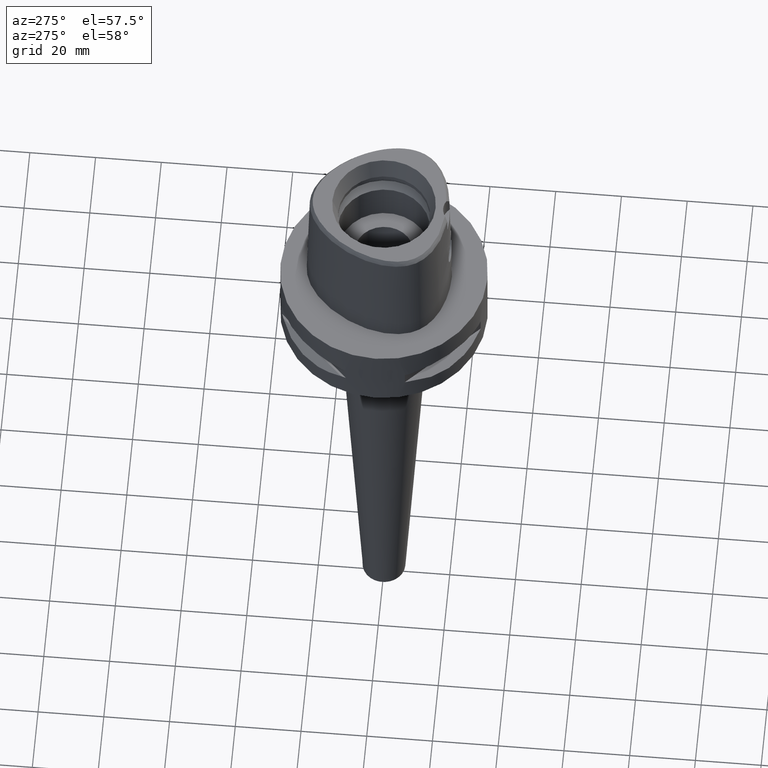
[diagram: clean part render]
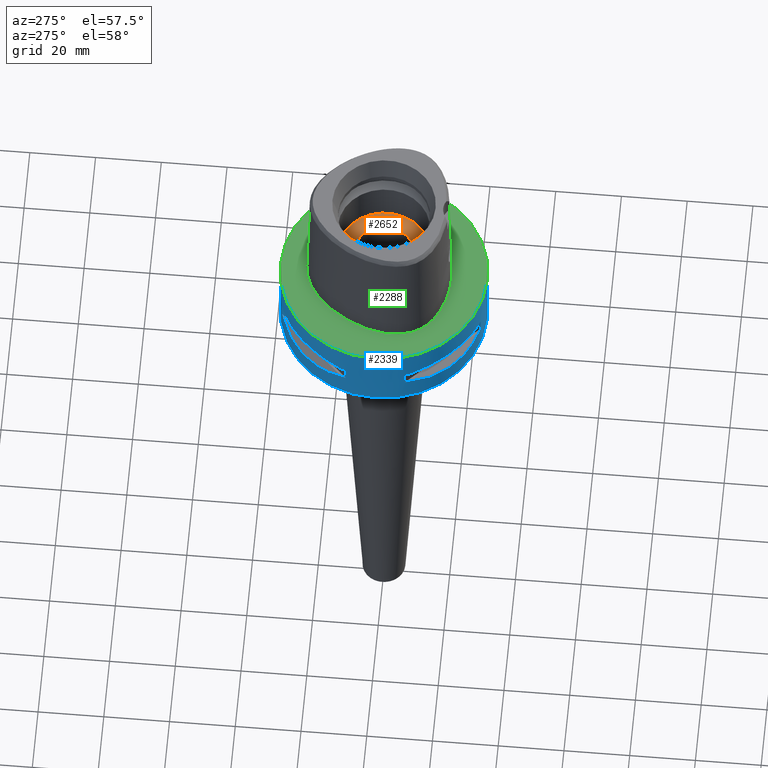
[diagram: same view with three faces highlighted in distinct colors, each labeled with its STEP entity id]
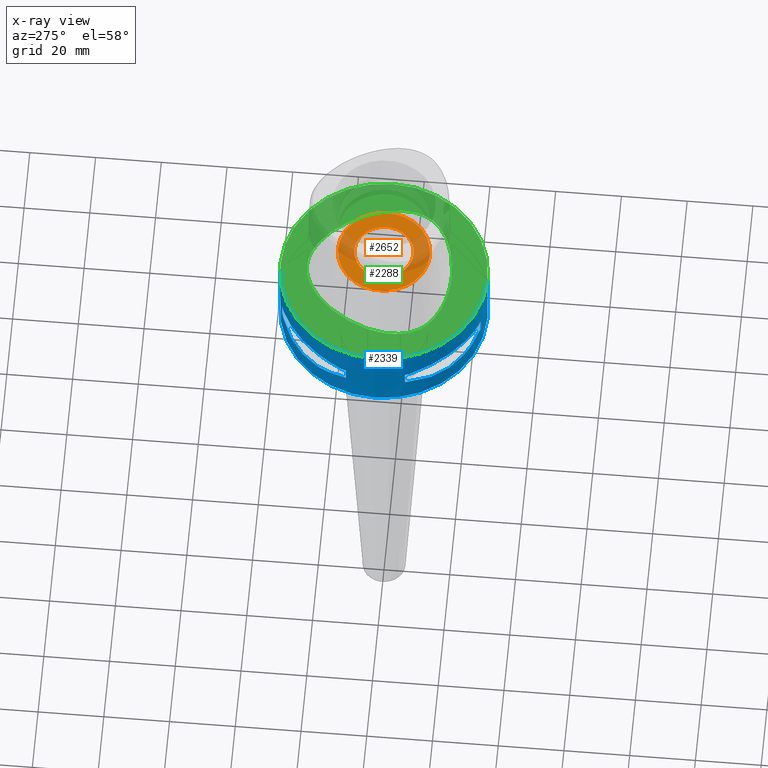
[diagram: x-ray of the same camera — body ghosted, the three highlighted faces saturated]
A machine part, auxiliary view with three faces highlighted in distinct colors.
The next image is the same camera in x-ray (body ghosted, the three faces saturated) — at least one of them is partly hidden behind the body in this view.
Their STEP definitions:

[orange] entity #2652 — the highlighted planar face has unit normal (0, 0, -1).
#745=CARTESIAN_POINT('',(0.E0,0.E0,1.1E1));
#746=DIRECTION('',(0.E0,0.E0,-1.E0));
#747=DIRECTION('',(0.E0,1.E0,0.E0));
#748=AXIS2_PLACEMENT_3D('',#745,#746,#747);
#753=CARTESIAN_POINT('',(0.E0,0.E0,1.1E1));
#754=DIRECTION('',(0.E0,0.E0,-1.E0));
#755=DIRECTION('',(0.E0,-1.E0,0.E0));
#756=AXIS2_PLACEMENT_3D('',#753,#754,#755);
#761=CARTESIAN_POINT('',(0.E0,0.E0,1.1E1));
#762=DIRECTION('',(0.E0,0.E0,1.E0));
#763=DIRECTION('',(0.E0,1.E0,0.E0));
#764=AXIS2_PLACEMENT_3D('',#761,#762,#763);
#769=CARTESIAN_POINT('',(0.E0,0.E0,1.1E1));
#770=DIRECTION('',(0.E0,0.E0,1.E0));
#771=DIRECTION('',(0.E0,-1.E0,0.E0));
#772=AXIS2_PLACEMENT_3D('',#769,#770,#771);
#1558=CARTESIAN_POINT('',(0.E0,9.E0,1.1E1));
#1559=VERTEX_POINT('',#1558);
#1560=CARTESIAN_POINT('',(0.E0,-9.E0,1.1E1));
#1561=VERTEX_POINT('',#1560);
#1562=CARTESIAN_POINT('',(0.E0,1.4E1,1.1E1));
#1563=CARTESIAN_POINT('',(0.E0,-1.4E1,1.1E1));
#1564=VERTEX_POINT('',#1562);
#1565=VERTEX_POINT('',#1563);
#2637=CARTESIAN_POINT('',(0.E0,0.E0,1.1E1));
#2638=DIRECTION('',(0.E0,0.E0,-1.E0));
#2639=DIRECTION('',(0.E0,-1.E0,0.E0));
#2640=AXIS2_PLACEMENT_3D('',#2637,#2638,#2639);
#2641=PLANE('',#2640);
#2643=ORIENTED_EDGE('',*,*,#2642,.T.);
#2645=ORIENTED_EDGE('',*,*,#2644,.T.);
#2646=EDGE_LOOP('',(#2643,#2645));
#2647=FACE_OUTER_BOUND('',#2646,.F.);
#2648=ORIENTED_EDGE('',*,*,#2619,.T.);
#2649=ORIENTED_EDGE('',*,*,#2632,.T.);
#2650=EDGE_LOOP('',(#2648,#2649));
#2651=FACE_BOUND('',#2650,.F.);
#749=CIRCLE('',#748,1.4E1);
#757=CIRCLE('',#756,1.4E1);
#765=CIRCLE('',#764,9.E0);
#773=CIRCLE('',#772,9.E0);
#2619=EDGE_CURVE('',#1559,#1561,#765,.T.);
#2632=EDGE_CURVE('',#1561,#1559,#773,.T.);
#2642=EDGE_CURVE('',#1564,#1565,#749,.T.);
#2644=EDGE_CURVE('',#1565,#1564,#757,.T.);
#2652=ADVANCED_FACE('',(#2647,#2651),#2641,.F.);

[blue] entity #2339 — the highlighted cylindrical surface (partial cylindrical patch) has radius 31.5 mm, axis along (0, 0, -1).
#275=CARTESIAN_POINT('',(0.E0,1.325680160077E-14,0.E0));
#276=DIRECTION('',(0.E0,0.E0,-1.E0));
#277=DIRECTION('',(0.E0,-1.E0,0.E0));
#278=AXIS2_PLACEMENT_3D('',#275,#276,#277);
#371=DIRECTION('',(0.E0,0.E0,-1.E0));
#372=VECTOR('',#371,2.2E1);
#373=CARTESIAN_POINT('',(0.E0,-3.15E1,0.E0));
#374=LINE('',#373,#372);
#378=DIRECTION('',(0.E0,0.E0,-1.E0));
#379=VECTOR('',#378,4.1E0);
#380=CARTESIAN_POINT('',(-8.981198972017E0,3.019251670572E1,-9.95E0));
#381=LINE('',#380,#379);
#385=CARTESIAN_POINT('',(-1.044775724750E1,2.971690375018E1,-1.405E1));
#386=CARTESIAN_POINT('',(-1.282388988809E1,2.888151197365E1,-1.467900482380E1));
#387=CARTESIAN_POINT('',(-1.711282138769E1,2.674739463903E1,-1.555870402293E1));
#388=CARTESIAN_POINT('',(-2.244574140438E1,2.244574140438E1,-1.597971692371E1));
#389=CARTESIAN_POINT('',(-2.674739463903E1,1.711282138769E1,-1.555870402293E1));
#390=CARTESIAN_POINT('',(-2.888151197365E1,1.282388988809E1,-1.467900482380E1));
#391=CARTESIAN_POINT('',(-2.971690375018E1,1.044775724750E1,-1.405E1));
#396=DIRECTION('',(0.E0,0.E0,1.E0));
#397=VECTOR('',#396,4.1E0);
#398=CARTESIAN_POINT('',(-3.019251670572E1,8.981198972017E0,-1.405E1));
#399=LINE('',#398,#397);
#403=DIRECTION('',(0.E0,0.E0,-1.E0));
#404=VECTOR('',#403,4.1E0);
#405=CARTESIAN_POINT('',(-3.019251670572E1,-8.981198972017E0,-9.95E0));
#406=LINE('',#405,#404);
#410=CARTESIAN_POINT('',(-2.971690375018E1,-1.044775724750E1,-1.405E1));
#411=CARTESIAN_POINT('',(-2.888151197365E1,-1.282388988809E1,
-1.467900482380E1));
#412=CARTESIAN_POINT('',(-2.674739463903E1,-1.711282138769E1,
-1.555870402292E1));
#413=CARTESIAN_POINT('',(-2.244574140438E1,-2.244574140438E1,
-1.597971692371E1));
#414=CARTESIAN_POINT('',(-1.711282138769E1,-2.674739463903E1,
-1.555870402292E1));
#415=CARTESIAN_POINT('',(-1.282388988809E1,-2.888151197365E1,
-1.467900482380E1));
#416=CARTESIAN_POINT('',(-1.044775724750E1,-2.971690375018E1,-1.405E1));
#421=DIRECTION('',(0.E0,0.E0,1.E0));
#422=VECTOR('',#421,4.1E0);
#423=CARTESIAN_POINT('',(-8.981198972017E0,-3.019251670572E1,-1.405E1));
#424=LINE('',#423,#422);
#428=DIRECTION('',(0.E0,0.E0,-1.E0));
#429=VECTOR('',#428,2.2E1);
#430=CARTESIAN_POINT('',(0.E0,3.15E1,0.E0));
#431=LINE('',#430,#429);
#493=CARTESIAN_POINT('',(0.E0,1.325680160077E-14,-2.2E1));
#494=DIRECTION('',(0.E0,0.E0,1.E0));
#495=DIRECTION('',(0.E0,1.E0,0.E0));
#496=AXIS2_PLACEMENT_3D('',#493,#494,#495);
#1290=CARTESIAN_POINT('',(-1.044775724750E1,2.971690375018E1,
-9.950000000001E0));
#1291=CARTESIAN_POINT('',(-1.282388988809E1,2.888151197365E1,
-9.320995176200E0));
#1292=CARTESIAN_POINT('',(-1.711282138769E1,2.674739463903E1,
-8.441295977077E0));
#1293=CARTESIAN_POINT('',(-2.244574140438E1,2.244574140438E1,
-8.020283076297E0));
#1294=CARTESIAN_POINT('',(-2.674739463903E1,1.711282138769E1,
-8.441295977077E0));
#1295=CARTESIAN_POINT('',(-2.888151197365E1,1.282388988809E1,
-9.320995176200E0));
#1296=CARTESIAN_POINT('',(-2.971690375018E1,1.044775724750E1,
-9.950000000001E0));
#1301=CARTESIAN_POINT('',(0.E0,1.325680160077E-14,-9.95E0));
#1302=DIRECTION('',(0.E0,0.E0,1.E0));
#1303=DIRECTION('',(-9.433937698469E-1,3.316748332541E-1,0.E0));
#1304=AXIS2_PLACEMENT_3D('',#1301,#1302,#1303);
#1309=CARTESIAN_POINT('',(0.E0,1.325680160077E-14,-9.95E0));
#1310=DIRECTION('',(0.E0,0.E0,1.E0));
#1311=DIRECTION('',(-2.851174276832E-1,9.584925938323E-1,0.E0));
#1312=AXIS2_PLACEMENT_3D('',#1309,#1310,#1311);
#1331=CARTESIAN_POINT('',(0.E0,1.325680160077E-14,-1.405E1));
#1332=DIRECTION('',(0.E0,0.E0,-1.E0));
#1333=DIRECTION('',(-9.584925938323E-1,2.851174276832E-1,0.E0));
#1334=AXIS2_PLACEMENT_3D('',#1331,#1332,#1333);
#1339=CARTESIAN_POINT('',(0.E0,1.325680160077E-14,-1.405E1));
#1340=DIRECTION('',(0.E0,0.E0,-1.E0));
#1341=DIRECTION('',(-3.316748332541E-1,9.433937698469E-1,0.E0));
#1342=AXIS2_PLACEMENT_3D('',#1339,#1340,#1341);
#1361=CARTESIAN_POINT('',(-2.971690375018E1,-1.044775724750E1,
-9.950000000001E0));
#1362=CARTESIAN_POINT('',(-2.888151197365E1,-1.282388988809E1,
-9.320995176200E0));
#1363=CARTESIAN_POINT('',(-2.674739463903E1,-1.711282138769E1,
-8.441295977077E0));
#1364=CARTESIAN_POINT('',(-2.244574140438E1,-2.244574140438E1,
-8.020283076297E0));
#1365=CARTESIAN_POINT('',(-1.711282138769E1,-2.674739463903E1,
-8.441295977077E0));
#1366=CARTESIAN_POINT('',(-1.282388988809E1,-2.888151197365E1,
-9.320995176200E0));
#1367=CARTESIAN_POINT('',(-1.044775724750E1,-2.971690375018E1,
-9.950000000001E0));
#1372=CARTESIAN_POINT('',(0.E0,1.325680160077E-14,-9.95E0));
#1373=DIRECTION('',(0.E0,0.E0,1.E0));
#1374=DIRECTION('',(-3.316748332541E-1,-9.433937698469E-1,0.E0));
#1375=AXIS2_PLACEMENT_3D('',#1372,#1373,#1374);
#1380=CARTESIAN_POINT('',(0.E0,1.325680160077E-14,-9.95E0));
#1381=DIRECTION('',(0.E0,0.E0,1.E0));
#1382=DIRECTION('',(-9.584925938323E-1,-2.851174276832E-1,0.E0));
#1383=AXIS2_PLACEMENT_3D('',#1380,#1381,#1382);
#1402=CARTESIAN_POINT('',(0.E0,1.325680160077E-14,-1.405E1));
#1403=DIRECTION('',(0.E0,0.E0,-1.E0));
#1404=DIRECTION('',(-2.851174276832E-1,-9.584925938323E-1,0.E0));
#1405=AXIS2_PLACEMENT_3D('',#1402,#1403,#1404);
#1410=CARTESIAN_POINT('',(0.E0,1.325680160077E-14,-1.405E1));
#1411=DIRECTION('',(0.E0,0.E0,-1.E0));
#1412=DIRECTION('',(-9.433937698469E-1,-3.316748332541E-1,0.E0));
#1413=AXIS2_PLACEMENT_3D('',#1410,#1411,#1412);
#1458=CARTESIAN_POINT('',(0.E0,-3.15E1,0.E0));
#1459=CARTESIAN_POINT('',(0.E0,3.15E1,0.E0));
#1460=VERTEX_POINT('',#1458);
#1461=VERTEX_POINT('',#1459);
#1462=CARTESIAN_POINT('',(0.E0,3.15E1,-2.2E1));
#1463=VERTEX_POINT('',#1462);
#1464=CARTESIAN_POINT('',(0.E0,-3.15E1,-2.2E1));
#1465=VERTEX_POINT('',#1464);
#1466=VERTEX_POINT('',#1290);
#1467=VERTEX_POINT('',#1296);
#1468=CARTESIAN_POINT('',(-8.981198972020E0,3.019251670572E1,-9.95E0));
#1469=VERTEX_POINT('',#1468);
#1470=CARTESIAN_POINT('',(-8.981198972017E0,3.019251670572E1,-1.405E1));
#1471=VERTEX_POINT('',#1470);
#1472=CARTESIAN_POINT('',(-1.044775724750E1,2.971690375018E1,-1.405E1));
#1473=VERTEX_POINT('',#1472);
#1474=VERTEX_POINT('',#391);
#1475=CARTESIAN_POINT('',(-3.019251670572E1,8.981198972020E0,-1.405E1));
#1476=VERTEX_POINT('',#1475);
#1477=CARTESIAN_POINT('',(-3.019251670572E1,8.981198972017E0,-9.95E0));
#1478=VERTEX_POINT('',#1477);
#1479=VERTEX_POINT('',#1361);
#1480=VERTEX_POINT('',#1367);
#1481=CARTESIAN_POINT('',(-3.019251670572E1,-8.981198972020E0,-9.95E0));
#1482=VERTEX_POINT('',#1481);
#1483=CARTESIAN_POINT('',(-3.019251670572E1,-8.981198972017E0,-1.405E1));
#1484=VERTEX_POINT('',#1483);
#1485=CARTESIAN_POINT('',(-2.971690375018E1,-1.044775724750E1,-1.405E1));
#1486=VERTEX_POINT('',#1485);
#1487=VERTEX_POINT('',#416);
#1488=CARTESIAN_POINT('',(-8.981198972020E0,-3.019251670572E1,-1.405E1));
#1489=VERTEX_POINT('',#1488);
#1490=CARTESIAN_POINT('',(-8.981198972017E0,-3.019251670572E1,-9.95E0));
#1491=VERTEX_POINT('',#1490);
#2289=CARTESIAN_POINT('',(0.E0,1.325680160077E-14,8.25E0));
#2290=DIRECTION('',(0.E0,0.E0,-1.E0));
#2291=DIRECTION('',(0.E0,-1.E0,0.E0));
#2292=AXIS2_PLACEMENT_3D('',#2289,#2290,#2291);
#2293=CYLINDRICAL_SURFACE('',#2292,3.15E1);
#2295=ORIENTED_EDGE('',*,*,#2294,.F.);
#2296=ORIENTED_EDGE('',*,*,#2277,.F.);
#2298=ORIENTED_EDGE('',*,*,#2297,.T.);
#2300=ORIENTED_EDGE('',*,*,#2299,.F.);
#2301=EDGE_LOOP('',(#2295,#2296,#2298,#2300));
#2302=FACE_OUTER_BOUND('',#2301,.F.);
#2304=ORIENTED_EDGE('',*,*,#2303,.F.);
#2306=ORIENTED_EDGE('',*,*,#2305,.F.);
#2308=ORIENTED_EDGE('',*,*,#2307,.T.);
#2310=ORIENTED_EDGE('',*,*,#2309,.F.);
#2312=ORIENTED_EDGE('',*,*,#2311,.T.);
#2314=ORIENTED_EDGE('',*,*,#2313,.F.);
#2316=ORIENTED_EDGE('',*,*,#2315,.T.);
#2318=ORIENTED_EDGE('',*,*,#2317,.F.);
#2319=EDGE_LOOP('',(#2304,#2306,#2308,#2310,#2312,#2314,#2316,#2318));
#2320=FACE_BOUND('',#2319,.F.);
#2322=ORIENTED_EDGE('',*,*,#2321,.F.);
#2324=ORIENTED_EDGE('',*,*,#2323,.F.);
#2326=ORIENTED_EDGE('',*,*,#2325,.T.);
#2328=ORIENTED_EDGE('',*,*,#2327,.F.);
#2330=ORIENTED_EDGE('',*,*,#2329,.T.);
#2332=ORIENTED_EDGE('',*,*,#2331,.F.);
#2334=ORIENTED_EDGE('',*,*,#2333,.T.);
#2336=ORIENTED_EDGE('',*,*,#2335,.F.);
#2337=EDGE_LOOP('',(#2322,#2324,#2326,#2328,#2330,#2332,#2334,#2336));
#2338=FACE_BOUND('',#2337,.F.);
#279=CIRCLE('',#278,3.15E1);
#392=B_SPLINE_CURVE_WITH_KNOTS('',3,(#385,#386,#387,#388,#389,#390,#391),
.UNSPECIFIED.,.F.,.F.,(4,1,1,1,4),(0.E0,2.5E-1,5.E-1,7.5E-1,1.E0),
.UNSPECIFIED.);
#417=B_SPLINE_CURVE_WITH_KNOTS('',3,(#410,#411,#412,#413,#414,#415,#416),
.UNSPECIFIED.,.F.,.F.,(4,1,1,1,4),(0.E0,2.5E-1,5.E-1,7.5E-1,1.E0),
.UNSPECIFIED.);
#497=CIRCLE('',#496,3.15E1);
#1297=B_SPLINE_CURVE_WITH_KNOTS('',3,(#1290,#1291,#1292,#1293,#1294,#1295,
#1296),.UNSPECIFIED.,.F.,.F.,(4,1,1,1,4),(0.E0,2.5E-1,5.E-1,7.5E-1,1.E0),
.UNSPECIFIED.);
#1305=CIRCLE('',#1304,3.15E1);
#1313=CIRCLE('',#1312,3.15E1);
#1335=CIRCLE('',#1334,3.15E1);
#1343=CIRCLE('',#1342,3.15E1);
#1368=B_SPLINE_CURVE_WITH_KNOTS('',3,(#1361,#1362,#1363,#1364,#1365,#1366,
#1367),.UNSPECIFIED.,.F.,.F.,(4,1,1,1,4),(0.E0,2.5E-1,5.E-1,7.5E-1,1.E0),
.UNSPECIFIED.);
#1376=CIRCLE('',#1375,3.15E1);
#1384=CIRCLE('',#1383,3.15E1);
#1406=CIRCLE('',#1405,3.15E1);
#1414=CIRCLE('',#1413,3.15E1);
#2277=EDGE_CURVE('',#1460,#1461,#279,.T.);
#2294=EDGE_CURVE('',#1461,#1463,#431,.T.);
#2297=EDGE_CURVE('',#1460,#1465,#374,.T.);
#2299=EDGE_CURVE('',#1463,#1465,#497,.T.);
#2303=EDGE_CURVE('',#1466,#1467,#1297,.T.);
#2305=EDGE_CURVE('',#1469,#1466,#1313,.T.);
#2307=EDGE_CURVE('',#1469,#1471,#381,.T.);
#2309=EDGE_CURVE('',#1473,#1471,#1343,.T.);
#2311=EDGE_CURVE('',#1473,#1474,#392,.T.);
#2313=EDGE_CURVE('',#1476,#1474,#1335,.T.);
#2315=EDGE_CURVE('',#1476,#1478,#399,.T.);
#2317=EDGE_CURVE('',#1467,#1478,#1305,.T.);
#2321=EDGE_CURVE('',#1479,#1480,#1368,.T.);
#2323=EDGE_CURVE('',#1482,#1479,#1384,.T.);
#2325=EDGE_CURVE('',#1482,#1484,#406,.T.);
#2327=EDGE_CURVE('',#1486,#1484,#1414,.T.);
#2329=EDGE_CURVE('',#1486,#1487,#417,.T.);
#2331=EDGE_CURVE('',#1489,#1487,#1406,.T.);
#2333=EDGE_CURVE('',#1489,#1491,#424,.T.);
#2335=EDGE_CURVE('',#1480,#1491,#1376,.T.);
#2339=ADVANCED_FACE('',(#2302,#2320,#2338),#2293,.T.);

[green] entity #2288 — the highlighted planar face has unit normal (0, 0, -1).
#275=CARTESIAN_POINT('',(0.E0,1.325680160077E-14,0.E0));
#276=DIRECTION('',(0.E0,0.E0,-1.E0));
#277=DIRECTION('',(0.E0,-1.E0,0.E0));
#278=AXIS2_PLACEMENT_3D('',#275,#276,#277);
#283=CARTESIAN_POINT('',(0.E0,1.325680160077E-14,0.E0));
#284=DIRECTION('',(0.E0,0.E0,-1.E0));
#285=DIRECTION('',(0.E0,1.E0,0.E0));
#286=AXIS2_PLACEMENT_3D('',#283,#284,#285);
#291=CARTESIAN_POINT('',(-5.544119263659E-12,-2.0675E1,7.264559324464E-14));
#292=CARTESIAN_POINT('',(9.993560509798E-1,-2.0675E1,7.264559324464E-14));
#293=CARTESIAN_POINT('',(2.955454059953E0,-2.059182991098E1,
-3.371493715748E-14));
#294=CARTESIAN_POINT('',(5.793056832365E0,-2.023445547095E1,0.E0));
#295=CARTESIAN_POINT('',(8.440299845029E0,-1.966898990197E1,0.E0));
#296=CARTESIAN_POINT('',(1.082569887884E1,-1.893751788510E1,0.E0));
#297=CARTESIAN_POINT('',(1.292144293780E1,-1.808304144246E1,0.E0));
#298=CARTESIAN_POINT('',(1.473190987268E1,-1.714161088191E1,0.E0));
#299=CARTESIAN_POINT('',(1.628058086811E1,-1.613700341594E1,0.E0));
#300=CARTESIAN_POINT('',(1.758462319708E1,-1.509429163050E1,0.E0));
#301=CARTESIAN_POINT('',(1.868311493360E1,-1.401452497844E1,0.E0));
#302=CARTESIAN_POINT('',(1.959652438140E1,-1.290475345799E1,0.E0));
#303=CARTESIAN_POINT('',(2.036064678625E1,-1.173722907498E1,0.E0));
#304=CARTESIAN_POINT('',(2.098286737742E1,-1.049796407517E1,0.E0));
#305=CARTESIAN_POINT('',(2.148460262653E1,-9.152658909070E0,0.E0));
#306=CARTESIAN_POINT('',(2.186688955230E1,-7.668741930685E0,0.E0));
#307=CARTESIAN_POINT('',(2.211748022392E1,-6.011344606950E0,0.E0));
#308=CARTESIAN_POINT('',(2.221114513228E1,-4.165101131633E0,0.E0));
#309=CARTESIAN_POINT('',(2.211859909826E1,-2.119791264277E0,0.E0));
#310=CARTESIAN_POINT('',(2.180697303124E1,1.274638893074E-1,0.E0));
#311=CARTESIAN_POINT('',(2.124390727169E1,2.561688994165E0,0.E0));
#312=CARTESIAN_POINT('',(2.040432990039E1,5.142967568815E0,0.E0));
#313=CARTESIAN_POINT('',(1.928615762684E1,7.790527726071E0,0.E0));
#314=CARTESIAN_POINT('',(1.790818983488E1,1.041471447125E1,0.E0));
#315=CARTESIAN_POINT('',(1.631740085403E1,1.291115934797E1,0.E0));
#316=CARTESIAN_POINT('',(1.457981575214E1,1.519116277501E1,0.E0));
#317=CARTESIAN_POINT('',(1.276360468057E1,1.719471030503E1,0.E0));
#318=CARTESIAN_POINT('',(1.094031032691E1,1.888405274651E1,0.E0));
#319=CARTESIAN_POINT('',(9.153147211204E0,2.026455207171E1,0.E0));
#320=CARTESIAN_POINT('',(7.435015692265E0,2.135402119261E1,0.E0));
#321=CARTESIAN_POINT('',(5.795953209951E0,2.218530691809E1,0.E0));
#322=CARTESIAN_POINT('',(4.238113018428E0,2.278980944085E1,0.E0));
#323=CARTESIAN_POINT('',(2.755912777145E0,2.319591735050E1,0.E0));
#324=CARTESIAN_POINT('',(1.346169757095E0,2.342625517229E1,
-3.235809557040E-14));
#325=CARTESIAN_POINT('',(4.420725725818E-1,2.347499999999E1,
6.972200594646E-14));
#326=CARTESIAN_POINT('',(3.799139197506E-11,2.347499999999E1,
6.972200594646E-14));
#331=CARTESIAN_POINT('',(3.799139197506E-11,2.347499999999E1,
6.972200594646E-14));
#332=CARTESIAN_POINT('',(-4.425820475878E-1,2.347499999999E1,
6.972200594646E-14));
#333=CARTESIAN_POINT('',(-1.347662200040E0,2.342614583775E1,
-3.235809557040E-14));
#334=CARTESIAN_POINT('',(-2.758853381342E0,2.319531897184E1,0.E0));
#335=CARTESIAN_POINT('',(-4.242230104549E0,2.278848861890E1,0.E0));
#336=CARTESIAN_POINT('',(-5.801612667635E0,2.218285001682E1,0.E0));
#337=CARTESIAN_POINT('',(-7.442978404358E0,2.134957065587E1,0.E0));
#338=CARTESIAN_POINT('',(-9.163227561140E0,2.025756793929E1,0.E0));
#339=CARTESIAN_POINT('',(-1.095272870368E1,1.887364628884E1,0.E0));
#340=CARTESIAN_POINT('',(-1.277801152707E1,1.718022281640E1,0.E0));
#341=CARTESIAN_POINT('',(-1.459495771783E1,1.517303412729E1,0.E0));
#342=CARTESIAN_POINT('',(-1.633282642389E1,1.288911490603E1,0.E0));
#343=CARTESIAN_POINT('',(-1.792246770589E1,1.039015374661E1,0.E0));
#344=CARTESIAN_POINT('',(-1.929884579616E1,7.763682889804E0,0.E0));
#345=CARTESIAN_POINT('',(-2.041405626851E1,5.116842502056E0,0.E0));
#346=CARTESIAN_POINT('',(-2.125087139496E1,2.536440296266E0,0.E0));
#347=CARTESIAN_POINT('',(-2.181091904993E1,1.058134259895E-1,0.E0));
#348=CARTESIAN_POINT('',(-2.212049288494E1,-2.140142262062E0,0.E0));
#349=CARTESIAN_POINT('',(-2.221099399982E1,-4.183391986546E0,0.E0));
#350=CARTESIAN_POINT('',(-2.211611235615E1,-6.025168758480E0,0.E0));
#351=CARTESIAN_POINT('',(-2.186347175870E1,-7.686763478002E0,0.E0));
#352=CARTESIAN_POINT('',(-2.147797938097E1,-9.173911519513E0,0.E0));
#353=CARTESIAN_POINT('',(-2.097460780692E1,-1.051678122246E1,0.E0));
#354=CARTESIAN_POINT('',(-2.035325712307E1,-1.174865156376E1,0.E0));
#355=CARTESIAN_POINT('',(-1.960223723573E1,-1.289594780434E1,0.E0));
#356=CARTESIAN_POINT('',(-1.869579824321E1,-1.400010665431E1,0.E0));
#357=CARTESIAN_POINT('',(-1.760876310015E1,-1.507291202278E1,0.E0));
#358=CARTESIAN_POINT('',(-1.629860914140E1,-1.612432705675E1,0.E0));
#359=CARTESIAN_POINT('',(-1.475326852250E1,-1.712914698935E1,0.E0));
#360=CARTESIAN_POINT('',(-1.294126791582E1,-1.807406224244E1,0.E0));
#361=CARTESIAN_POINT('',(-1.084450933749E1,-1.893089849681E1,0.E0));
#362=CARTESIAN_POINT('',(-8.457239462537E0,-1.966475618658E1,0.E0));
#363=CARTESIAN_POINT('',(-5.803786146490E0,-2.023290404964E1,0.E0));
#364=CARTESIAN_POINT('',(-2.957577428885E0,-2.059182769325E1,
-3.371493715748E-14));
#365=CARTESIAN_POINT('',(-9.997112379900E-1,-2.0675E1,7.264559324464E-14));
#366=CARTESIAN_POINT('',(-5.544119263659E-12,-2.0675E1,7.264559324464E-14));
#1452=VERTEX_POINT('',#331);
#1453=VERTEX_POINT('',#366);
#1458=CARTESIAN_POINT('',(0.E0,-3.15E1,0.E0));
#1459=CARTESIAN_POINT('',(0.E0,3.15E1,0.E0));
#1460=VERTEX_POINT('',#1458);
#1461=VERTEX_POINT('',#1459);
#2272=CARTESIAN_POINT('',(0.E0,1.224646799147E-14,0.E0));
#2273=DIRECTION('',(0.E0,0.E0,-1.E0));
#2274=DIRECTION('',(0.E0,-1.E0,0.E0));
#2275=AXIS2_PLACEMENT_3D('',#2272,#2273,#2274);
#2276=PLANE('',#2275);
#2278=ORIENTED_EDGE('',*,*,#2277,.T.);
#2280=ORIENTED_EDGE('',*,*,#2279,.T.);
#2281=EDGE_LOOP('',(#2278,#2280));
#2282=FACE_OUTER_BOUND('',#2281,.F.);
#2284=ORIENTED_EDGE('',*,*,#2283,.T.);
#2285=ORIENTED_EDGE('',*,*,#2255,.T.);
#2286=EDGE_LOOP('',(#2284,#2285));
#2287=FACE_BOUND('',#2286,.F.);
#279=CIRCLE('',#278,3.15E1);
#287=CIRCLE('',#286,3.15E1);
#327=B_SPLINE_CURVE_WITH_KNOTS('',3,(#291,#292,#293,#294,#295,#296,#297,#298,
#299,#300,#301,#302,#303,#304,#305,#306,#307,#308,#309,#310,#311,#312,#313,#314,
#315,#316,#317,#318,#319,#320,#321,#322,#323,#324,#325,#326),.UNSPECIFIED.,.F.,
.F.,(4,1,1,1,1,1,1,1,1,1,1,1,1,1,1,1,1,1,1,1,1,1,1,1,1,1,1,1,1,1,1,1,1,4),(0.E0,
3.030303030303E-2,6.060606060606E-2,9.090909090909E-2,1.212121212121E-1,
1.515151515152E-1,1.818181818182E-1,2.121212121212E-1,2.424242424242E-1,
2.727272727273E-1,3.030303030303E-1,3.333333333333E-1,3.636363636364E-1,
3.939393939394E-1,4.242424242424E-1,4.545454545455E-1,4.848484848485E-1,
5.151515151515E-1,5.454545454545E-1,5.757575757576E-1,6.060606060606E-1,
6.363636363636E-1,6.666666666667E-1,6.969696969697E-1,7.272727272727E-1,
7.575757575758E-1,7.878787878788E-1,8.181818181818E-1,8.484848484848E-1,
8.787878787879E-1,9.090909090909E-1,9.393939393939E-1,9.696969696970E-1,1.E0),
.UNSPECIFIED.);
#367=B_SPLINE_CURVE_WITH_KNOTS('',3,(#331,#332,#333,#334,#335,#336,#337,#338,
#339,#340,#341,#342,#343,#344,#345,#346,#347,#348,#349,#350,#351,#352,#353,#354,
#355,#356,#357,#358,#359,#360,#361,#362,#363,#364,#365,#366),.UNSPECIFIED.,.F.,
.F.,(4,1,1,1,1,1,1,1,1,1,1,1,1,1,1,1,1,1,1,1,1,1,1,1,1,1,1,1,1,1,1,1,1,4),(0.E0,
3.030303030303E-2,6.060606060606E-2,9.090909090909E-2,1.212121212121E-1,
1.515151515152E-1,1.818181818182E-1,2.121212121212E-1,2.424242424242E-1,
2.727272727273E-1,3.030303030303E-1,3.333333333333E-1,3.636363636364E-1,
3.939393939394E-1,4.242424242424E-1,4.545454545455E-1,4.848484848485E-1,
5.151515151515E-1,5.454545454545E-1,5.757575757576E-1,6.060606060606E-1,
6.363636363636E-1,6.666666666667E-1,6.969696969697E-1,7.272727272727E-1,
7.575757575758E-1,7.878787878788E-1,8.181818181818E-1,8.484848484848E-1,
8.787878787879E-1,9.090909090909E-1,9.393939393939E-1,9.696969696970E-1,1.E0),
.UNSPECIFIED.);
#2255=EDGE_CURVE('',#1452,#1453,#367,.T.);
#2277=EDGE_CURVE('',#1460,#1461,#279,.T.);
#2279=EDGE_CURVE('',#1461,#1460,#287,.T.);
#2283=EDGE_CURVE('',#1453,#1452,#327,.T.);
#2288=ADVANCED_FACE('',(#2282,#2287),#2276,.F.);